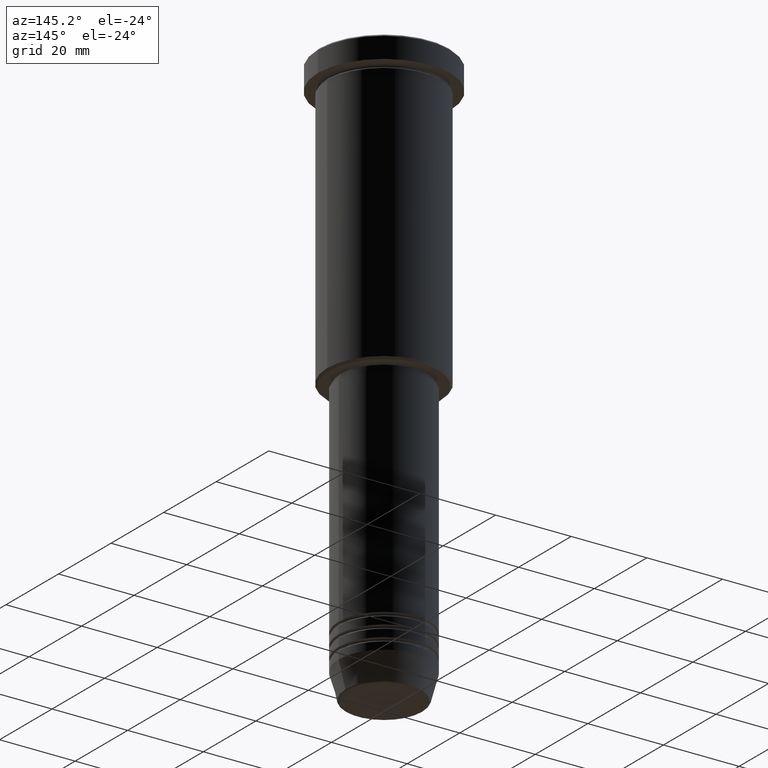
[diagram: clean part render]
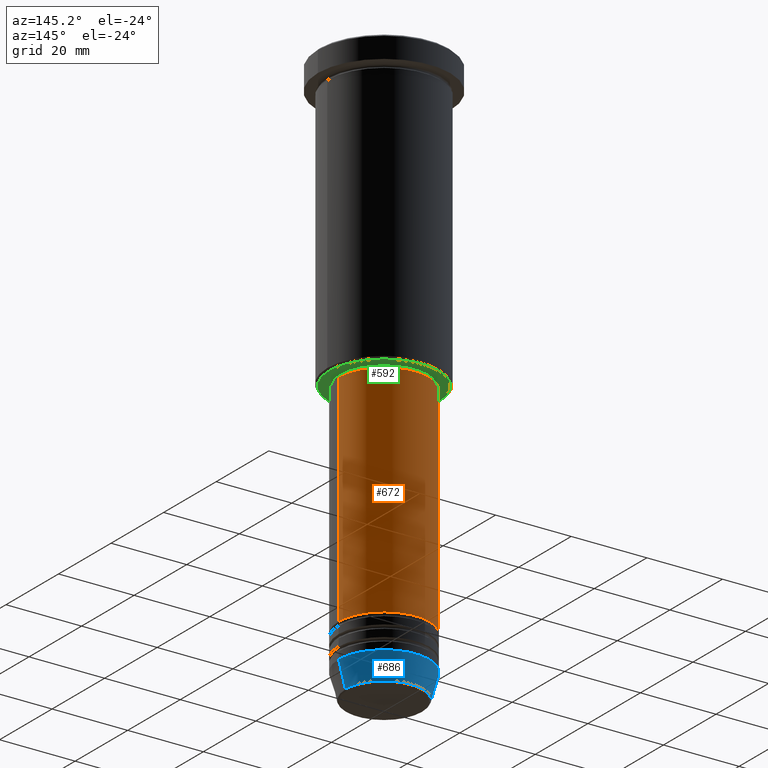
[diagram: same view with three faces highlighted in distinct colors, each labeled with its STEP entity id]
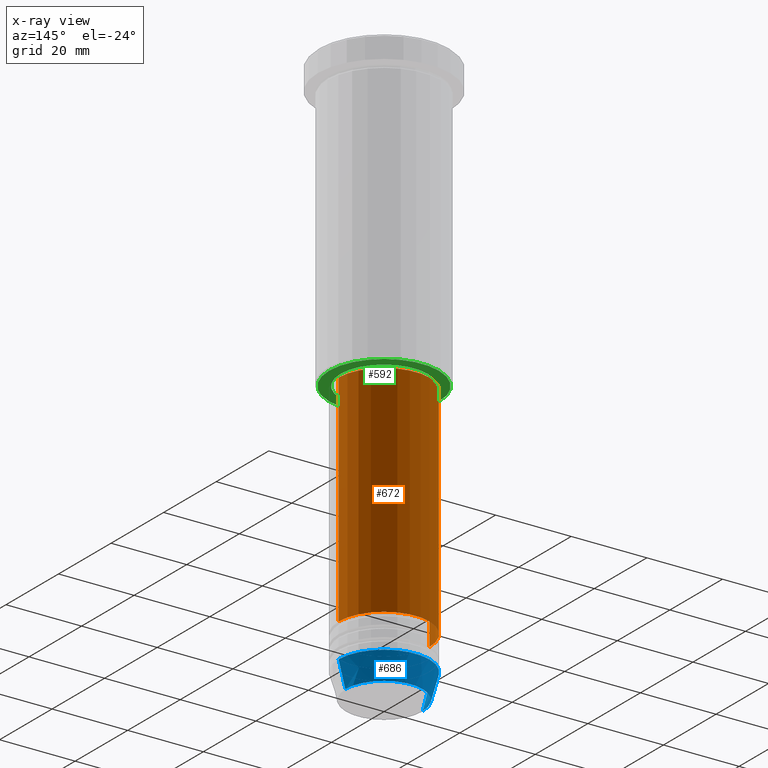
[diagram: x-ray of the same camera — body ghosted, the three highlighted faces saturated]
A machine part, auxiliary view with three faces highlighted in distinct colors.
The next image is the same camera in x-ray (body ghosted, the three faces saturated) — at least one of them is partly hidden behind the body in this view.
Their STEP definitions:

[orange] entity #672 — the highlighted cylindrical surface (partial cylindrical patch) has radius 12 mm, axis along (-0, -0, 1).
#16 = ORIENTED_EDGE ( 'NONE', *, *, #191, .F. ) ;
#83 = DIRECTION ( 'NONE',  ( -0.000000000000000000, -0.000000000000000000, 1.000000000000000000 ) ) ;
#178 = AXIS2_PLACEMENT_3D ( 'NONE', #512, #83, #879 ) ;
#182 = DIRECTION ( 'NONE',  ( -0.000000000000000000, -0.000000000000000000, 1.000000000000000000 ) ) ;
#191 = EDGE_CURVE ( 'NONE', #998, #406, #431, .T. ) ;
#236 = ORIENTED_EDGE ( 'NONE', *, *, #514, .T. ) ;
#239 = CIRCLE ( 'NONE', #553, 12.00000000000000000 ) ;
#243 = CARTESIAN_POINT ( 'NONE',  ( 12.00000000000000000, 0.000000000000000000, -76.99999999999998579 ) ) ;
#250 = ORIENTED_EDGE ( 'NONE', *, *, #502, .F. ) ;
#313 = CARTESIAN_POINT ( 'NONE',  ( 12.00000000000000000, 0.000000000000000000, 0.000000000000000000 ) ) ;
#335 = DIRECTION ( 'NONE',  ( -0.000000000000000000, -0.000000000000000000, 1.000000000000000000 ) ) ;
#355 = VERTEX_POINT ( 'NONE', #754 ) ;
#365 = LINE ( 'NONE', #1165, #922 ) ;
#406 = VERTEX_POINT ( 'NONE', #1017 ) ;
#407 = DIRECTION ( 'NONE',  ( 1.000000000000000000, 0.000000000000000000, 0.000000000000000000 ) ) ;
#431 = CIRCLE ( 'NONE', #1088, 12.00000000000000000 ) ;
#486 = LINE ( 'NONE', #313, #624 ) ;
#502 = EDGE_CURVE ( 'NONE', #355, #998, #486, .T. ) ;
#512 = CARTESIAN_POINT ( 'NONE',  ( 0.000000000000000000, 0.000000000000000000, 0.000000000000000000 ) ) ;
#514 = EDGE_CURVE ( 'NONE', #355, #1075, #239, .T. ) ;
#525 = CYLINDRICAL_SURFACE ( 'NONE', #178, 12.00000000000000000 ) ;
#528 = DIRECTION ( 'NONE',  ( -0.000000000000000000, -0.000000000000000000, 1.000000000000000000 ) ) ;
#553 = AXIS2_PLACEMENT_3D ( 'NONE', #949, #335, #407 ) ;
#616 = FACE_OUTER_BOUND ( 'NONE', #1070, .T. ) ;
#624 = VECTOR ( 'NONE', #1138, 1000.000000000000000 ) ;
#672 = ADVANCED_FACE ( 'NONE', ( #616 ), #525, .T. ) ;
#695 = DIRECTION ( 'NONE',  ( 1.000000000000000000, 0.000000000000000000, 0.000000000000000000 ) ) ;
#715 = CARTESIAN_POINT ( 'NONE',  ( 0.000000000000000000, 0.000000000000000000, -76.99999999999998579 ) ) ;
#754 = CARTESIAN_POINT ( 'NONE',  ( 12.00000000000000000, 0.000000000000000000, -134.9999999999999432 ) ) ;
#879 = DIRECTION ( 'NONE',  ( 1.000000000000000000, 0.000000000000000000, 0.000000000000000000 ) ) ;
#922 = VECTOR ( 'NONE', #528, 1000.000000000000000 ) ;
#949 = CARTESIAN_POINT ( 'NONE',  ( 0.000000000000000000, 0.000000000000000000, -134.9999999999999432 ) ) ;
#998 = VERTEX_POINT ( 'NONE', #243 ) ;
#1004 = CARTESIAN_POINT ( 'NONE',  ( -12.00000000000000000, 1.469576158976823947E-15, -134.9999999999999432 ) ) ;
#1017 = CARTESIAN_POINT ( 'NONE',  ( -12.00000000000000000, 1.469576158976823947E-15, -76.99999999999998579 ) ) ;
#1070 = EDGE_LOOP ( 'NONE', ( #236, #1095, #16, #250 ) ) ;
#1075 = VERTEX_POINT ( 'NONE', #1004 ) ;
#1088 = AXIS2_PLACEMENT_3D ( 'NONE', #715, #182, #695 ) ;
#1095 = ORIENTED_EDGE ( 'NONE', *, *, #1137, .T. ) ;
#1137 = EDGE_CURVE ( 'NONE', #1075, #406, #365, .T. ) ;
#1138 = DIRECTION ( 'NONE',  ( -0.000000000000000000, -0.000000000000000000, 1.000000000000000000 ) ) ;
#1165 = CARTESIAN_POINT ( 'NONE',  ( -12.00000000000000000, 1.469576158976823947E-15, 0.000000000000000000 ) ) ;

[blue] entity #686 — the highlighted conical surface has half-angle 15 deg.
#9 = EDGE_CURVE ( 'NONE', #115, #225, #496, .T. ) ;
#46 = VECTOR ( 'NONE', #557, 1000.000000000000000 ) ;
#115 = VERTEX_POINT ( 'NONE', #315 ) ;
#166 = DIRECTION ( 'NONE',  ( 1.000000000000000000, 0.000000000000000000, 0.000000000000000000 ) ) ;
#225 = VERTEX_POINT ( 'NONE', #541 ) ;
#235 = DIRECTION ( 'NONE',  ( 1.000000000000000000, 0.000000000000000000, 0.000000000000000000 ) ) ;
#249 = CARTESIAN_POINT ( 'NONE',  ( 0.000000000000000000, 0.000000000000000000, -144.0000000000000000 ) ) ;
#256 = CONICAL_SURFACE ( 'NONE', #764, 12.00000000000000000, 0.2617993877991500740 ) ;
#263 = VERTEX_POINT ( 'NONE', #711 ) ;
#269 = VERTEX_POINT ( 'NONE', #985 ) ;
#315 = CARTESIAN_POINT ( 'NONE',  ( 10.22365507213719660, 0.000000000000000000, -150.6294095225512422 ) ) ;
#336 = ORIENTED_EDGE ( 'NONE', *, *, #910, .T. ) ;
#352 = EDGE_CURVE ( 'NONE', #115, #269, #401, .T. ) ;
#401 = LINE ( 'NONE', #729, #46 ) ;
#433 = DIRECTION ( 'NONE',  ( -0.000000000000000000, -0.000000000000000000, 1.000000000000000000 ) ) ;
#449 = CARTESIAN_POINT ( 'NONE',  ( 0.000000000000000000, 0.000000000000000000, -144.0000000000000000 ) ) ;
#452 = FACE_OUTER_BOUND ( 'NONE', #925, .T. ) ;
#464 = ORIENTED_EDGE ( 'NONE', *, *, #9, .T. ) ;
#496 = CIRCLE ( 'NONE', #1109, 10.22365507213719660 ) ;
#541 = CARTESIAN_POINT ( 'NONE',  ( -10.22365507213719837, 1.360806402472383336E-15, -150.6294095225512422 ) ) ;
#557 = DIRECTION ( 'NONE',  ( 0.2588190451025213501, 0.000000000000000000, 0.9659258262890680902 ) ) ;
#568 = CARTESIAN_POINT ( 'NONE',  ( 0.000000000000000000, 0.000000000000000000, -150.6294095225512422 ) ) ;
#609 = LINE ( 'NONE', #789, #799 ) ;
#614 = EDGE_CURVE ( 'NONE', #269, #263, #838, .T. ) ;
#633 = ORIENTED_EDGE ( 'NONE', *, *, #352, .F. ) ;
#679 = DIRECTION ( 'NONE',  ( -0.2588190451025213501, 3.169619151431772337E-17, 0.9659258262890680902 ) ) ;
#686 = ADVANCED_FACE ( 'NONE', ( #452 ), #256, .T. ) ;
#704 = DIRECTION ( 'NONE',  ( 1.000000000000000000, 0.000000000000000000, 0.000000000000000000 ) ) ;
#711 = CARTESIAN_POINT ( 'NONE',  ( -12.00000000000000000, 1.469576158976823947E-15, -144.0000000000000000 ) ) ;
#729 = CARTESIAN_POINT ( 'NONE',  ( 12.00000000000000000, 0.000000000000000000, -144.0000000000000000 ) ) ;
#764 = AXIS2_PLACEMENT_3D ( 'NONE', #449, #433, #704 ) ;
#789 = CARTESIAN_POINT ( 'NONE',  ( -12.00000000000000000, 1.469576158976823947E-15, -144.0000000000000000 ) ) ;
#799 = VECTOR ( 'NONE', #679, 1000.000000000000000 ) ;
#838 = CIRCLE ( 'NONE', #1067, 12.00000000000000000 ) ;
#910 = EDGE_CURVE ( 'NONE', #225, #263, #609, .T. ) ;
#925 = EDGE_LOOP ( 'NONE', ( #464, #336, #1046, #633 ) ) ;
#979 = DIRECTION ( 'NONE',  ( -0.000000000000000000, -0.000000000000000000, 1.000000000000000000 ) ) ;
#985 = CARTESIAN_POINT ( 'NONE',  ( 12.00000000000000000, 0.000000000000000000, -144.0000000000000000 ) ) ;
#1046 = ORIENTED_EDGE ( 'NONE', *, *, #614, .F. ) ;
#1067 = AXIS2_PLACEMENT_3D ( 'NONE', #249, #979, #166 ) ;
#1109 = AXIS2_PLACEMENT_3D ( 'NONE', #568, #1139, #235 ) ;
#1139 = DIRECTION ( 'NONE',  ( -0.000000000000000000, -0.000000000000000000, 1.000000000000000000 ) ) ;

[green] entity #592 — the highlighted planar face has unit normal (0, 0, -1).
#69 = FACE_OUTER_BOUND ( 'NONE', #808, .T. ) ;
#70 = VERTEX_POINT ( 'NONE', #579 ) ;
#82 = CIRCLE ( 'NONE', #918, 11.50000000000000000 ) ;
#96 = EDGE_CURVE ( 'NONE', #991, #843, #1010, .T. ) ;
#151 = ORIENTED_EDGE ( 'NONE', *, *, #618, .T. ) ;
#171 = DIRECTION ( 'NONE',  ( 0.000000000000000000, 0.000000000000000000, -1.000000000000000000 ) ) ;
#203 = EDGE_CURVE ( 'NONE', #843, #991, #1013, .T. ) ;
#253 = DIRECTION ( 'NONE',  ( -1.000000000000000000, 0.000000000000000000, 0.000000000000000000 ) ) ;
#304 = DIRECTION ( 'NONE',  ( 1.000000000000000000, 0.000000000000000000, 0.000000000000000000 ) ) ;
#354 = DIRECTION ( 'NONE',  ( -1.000000000000000000, 0.000000000000000000, -0.000000000000000000 ) ) ;
#362 = FACE_BOUND ( 'NONE', #809, .T. ) ;
#364 = EDGE_CURVE ( 'NONE', #70, #916, #989, .T. ) ;
#366 = DIRECTION ( 'NONE',  ( -0.000000000000000000, -0.000000000000000000, 1.000000000000000000 ) ) ;
#423 = DIRECTION ( 'NONE',  ( 0.000000000000000000, 0.000000000000000000, -1.000000000000000000 ) ) ;
#488 = ORIENTED_EDGE ( 'NONE', *, *, #96, .T. ) ;
#505 = CARTESIAN_POINT ( 'NONE',  ( -14.49999999999998401, 1.806354028742345013E-15, -75.99999999999998579 ) ) ;
#517 = AXIS2_PLACEMENT_3D ( 'NONE', #1116, #1107, #304 ) ;
#567 = ORIENTED_EDGE ( 'NONE', *, *, #364, .T. ) ;
#576 = ORIENTED_EDGE ( 'NONE', *, *, #203, .T. ) ;
#579 = CARTESIAN_POINT ( 'NONE',  ( -11.50000000000000000, 1.408343819019456176E-15, -75.99999999999998579 ) ) ;
#592 = ADVANCED_FACE ( 'NONE', ( #69, #362 ), #1156, .T. ) ;
#618 = EDGE_CURVE ( 'NONE', #916, #70, #82, .T. ) ;
#753 = CARTESIAN_POINT ( 'NONE',  ( 11.50000000000000000, 0.000000000000000000, -75.99999999999998579 ) ) ;
#790 = DIRECTION ( 'NONE',  ( 1.000000000000000000, 0.000000000000000000, 0.000000000000000000 ) ) ;
#808 = EDGE_LOOP ( 'NONE', ( #576, #488 ) ) ;
#809 = EDGE_LOOP ( 'NONE', ( #151, #567 ) ) ;
#843 = VERTEX_POINT ( 'NONE', #1098 ) ;
#896 = AXIS2_PLACEMENT_3D ( 'NONE', #1043, #423, #1053 ) ;
#916 = VERTEX_POINT ( 'NONE', #753 ) ;
#918 = AXIS2_PLACEMENT_3D ( 'NONE', #1163, #366, #790 ) ;
#989 = CIRCLE ( 'NONE', #517, 11.50000000000000000 ) ;
#991 = VERTEX_POINT ( 'NONE', #505 ) ;
#1010 = CIRCLE ( 'NONE', #896, 14.49999999999998401 ) ;
#1013 = CIRCLE ( 'NONE', #1032, 14.49999999999998401 ) ;
#1032 = AXIS2_PLACEMENT_3D ( 'NONE', #1076, #1164, #253 ) ;
#1043 = CARTESIAN_POINT ( 'NONE',  ( 0.000000000000000000, 0.000000000000000000, -75.99999999999998579 ) ) ;
#1053 = DIRECTION ( 'NONE',  ( -1.000000000000000000, 0.000000000000000000, 0.000000000000000000 ) ) ;
#1076 = CARTESIAN_POINT ( 'NONE',  ( 0.000000000000000000, 0.000000000000000000, -75.99999999999998579 ) ) ;
#1098 = CARTESIAN_POINT ( 'NONE',  ( 14.49999999999998401, 0.000000000000000000, -75.99999999999998579 ) ) ;
#1107 = DIRECTION ( 'NONE',  ( -0.000000000000000000, -0.000000000000000000, 1.000000000000000000 ) ) ;
#1110 = AXIS2_PLACEMENT_3D ( 'NONE', #1181, #171, #354 ) ;
#1116 = CARTESIAN_POINT ( 'NONE',  ( 0.000000000000000000, 0.000000000000000000, -75.99999999999998579 ) ) ;
#1156 = PLANE ( 'NONE',  #1110 ) ;
#1163 = CARTESIAN_POINT ( 'NONE',  ( 0.000000000000000000, 0.000000000000000000, -75.99999999999998579 ) ) ;
#1164 = DIRECTION ( 'NONE',  ( 0.000000000000000000, 0.000000000000000000, -1.000000000000000000 ) ) ;
#1181 = CARTESIAN_POINT ( 'NONE',  ( 0.000000000000000000, 15.00000000000000000, -75.99999999999998579 ) ) ;